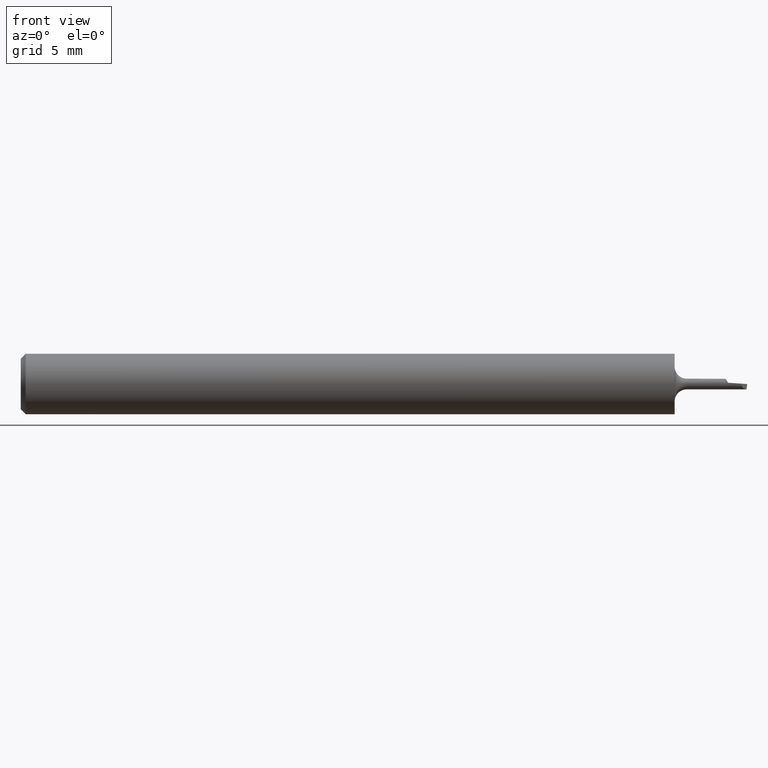
[diagram: clean part render]
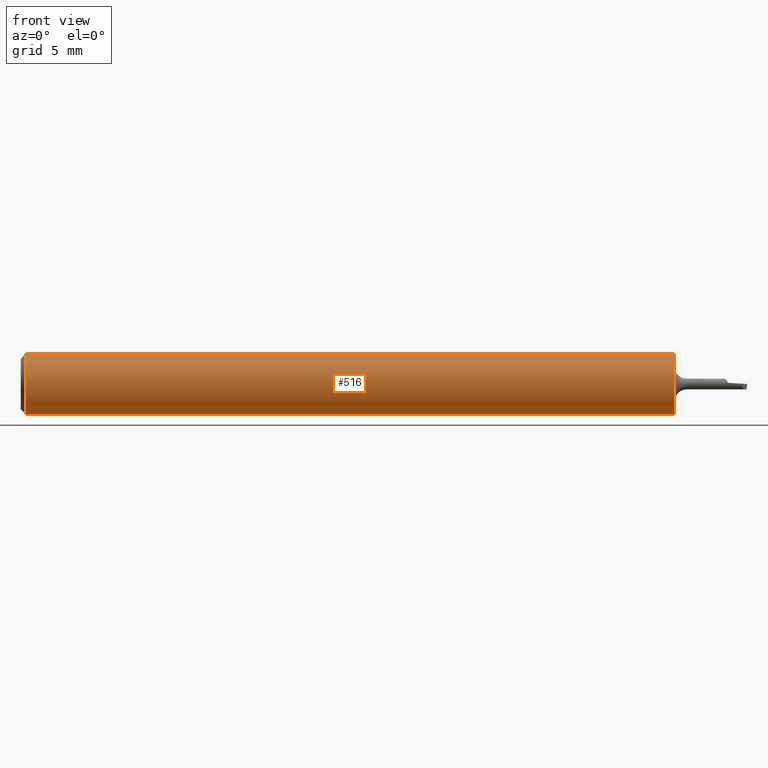
[diagram: same view with one face highlighted and labeled with its STEP entity id]
A machine part, front view. The second image highlights one B-rep face of the part: STEP entity #516.
In plain terms, the highlighted cylindrical surface (edge-blend (fillet) strip) has radius 1.5837 mm, axis along (-1, -0, -0).
Its self-contained STEP definition (entity closure, byte-faithful):
#12 = CARTESIAN_POINT ( 'NONE',  ( 0.01000000000000000021, 7.635672792683748212E-18, -0.06235000000000000264 ) ) ;
#27 = CARTESIAN_POINT ( 'NONE',  ( 1.350000000000000311, 0.000000000000000000, 0.06234999999999997489 ) ) ;
#39 = DIRECTION ( 'NONE',  ( -1.000000000000000000, -0.000000000000000000, -0.000000000000000000 ) ) ;
#44 = CARTESIAN_POINT ( 'NONE',  ( 0.000000000000000000, 7.635672792683743590E-18, -0.06234999999999997489 ) ) ;
#50 = VERTEX_POINT ( 'NONE', #27 ) ;
#92 = DIRECTION ( 'NONE',  ( 0.000000000000000000, 0.000000000000000000, 1.000000000000000000 ) ) ;
#114 = CARTESIAN_POINT ( 'NONE',  ( 1.350000000000000311, 0.000000000000000000, 0.000000000000000000 ) ) ;
#137 = VERTEX_POINT ( 'NONE', #690 ) ;
#139 = VECTOR ( 'NONE', #145, 39.37007874015748143 ) ;
#145 = DIRECTION ( 'NONE',  ( -1.000000000000000000, -0.000000000000000000, -0.000000000000000000 ) ) ;
#195 = AXIS2_PLACEMENT_3D ( 'NONE', #612, #560, #419 ) ;
#216 = AXIS2_PLACEMENT_3D ( 'NONE', #567, #297, #92 ) ;
#242 = ORIENTED_EDGE ( 'NONE', *, *, #605, .F. ) ;
#297 = DIRECTION ( 'NONE',  ( -1.000000000000000000, -0.000000000000000000, -0.000000000000000000 ) ) ;
#315 = CARTESIAN_POINT ( 'NONE',  ( 0.01000000000000000021, 0.000000000000000000, 0.06235000000000000264 ) ) ;
#334 = EDGE_CURVE ( 'NONE', #50, #137, #379, .T. ) ;
#347 = EDGE_LOOP ( 'NONE', ( #491, #459, #561, #242 ) ) ;
#375 = LINE ( 'NONE', #44, #585 ) ;
#379 = CIRCLE ( 'NONE', #600, 0.06234999999999997489 ) ;
#419 = DIRECTION ( 'NONE',  ( 0.000000000000000000, 0.000000000000000000, 1.000000000000000000 ) ) ;
#455 = FACE_OUTER_BOUND ( 'NONE', #347, .T. ) ;
#459 = ORIENTED_EDGE ( 'NONE', *, *, #334, .F. ) ;
#472 = LINE ( 'NONE', #685, #139 ) ;
#491 = ORIENTED_EDGE ( 'NONE', *, *, #591, .F. ) ;
#516 = ADVANCED_FACE ( 'NONE', ( #455 ), #668, .T. ) ;
#517 = VERTEX_POINT ( 'NONE', #315 ) ;
#550 = EDGE_CURVE ( 'NONE', #50, #517, #472, .T. ) ;
#560 = DIRECTION ( 'NONE',  ( -1.000000000000000000, -0.000000000000000000, -0.000000000000000000 ) ) ;
#561 = ORIENTED_EDGE ( 'NONE', *, *, #550, .T. ) ;
#567 = CARTESIAN_POINT ( 'NONE',  ( 0.01000000000000000021, 0.000000000000000000, 0.000000000000000000 ) ) ;
#585 = VECTOR ( 'NONE', #39, 39.37007874015748143 ) ;
#591 = EDGE_CURVE ( 'NONE', #137, #659, #375, .T. ) ;
#593 = DIRECTION ( 'NONE',  ( 1.000000000000000000, 0.000000000000000000, 0.000000000000000000 ) ) ;
#600 = AXIS2_PLACEMENT_3D ( 'NONE', #114, #593, #648 ) ;
#602 = CIRCLE ( 'NONE', #216, 0.06235000000000000264 ) ;
#605 = EDGE_CURVE ( 'NONE', #659, #517, #602, .T. ) ;
#612 = CARTESIAN_POINT ( 'NONE',  ( 0.000000000000000000, 0.000000000000000000, 0.000000000000000000 ) ) ;
#648 = DIRECTION ( 'NONE',  ( 0.000000000000000000, 0.000000000000000000, -1.000000000000000000 ) ) ;
#659 = VERTEX_POINT ( 'NONE', #12 ) ;
#668 = CYLINDRICAL_SURFACE ( 'NONE', #195, 0.06234999999999997489 ) ;
#685 = CARTESIAN_POINT ( 'NONE',  ( 0.000000000000000000, 0.000000000000000000, 0.06234999999999997489 ) ) ;
#690 = CARTESIAN_POINT ( 'NONE',  ( 1.350000000000000311, 7.635672792683743590E-18, -0.06234999999999997489 ) ) ;